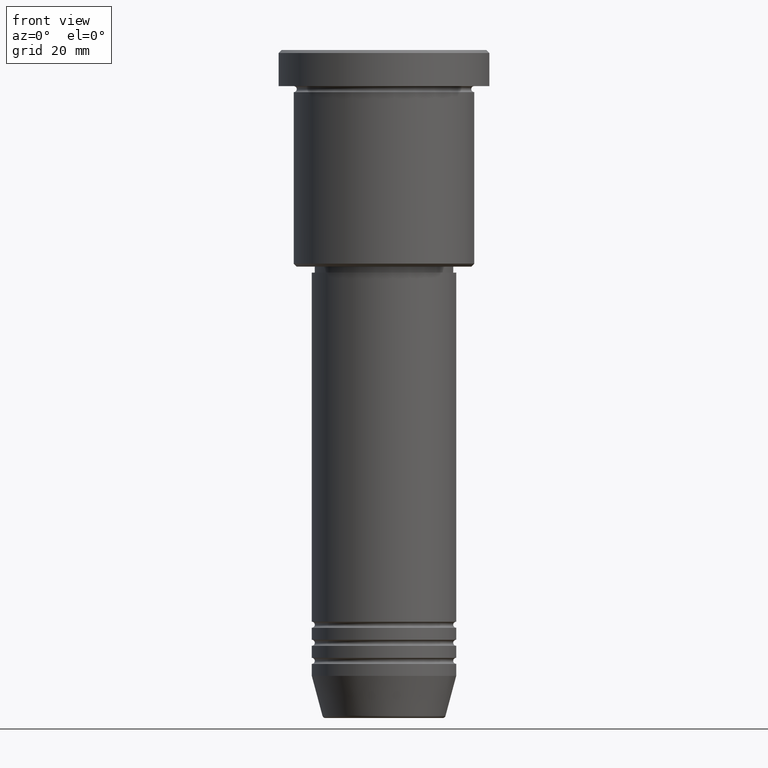
[diagram: clean part render]
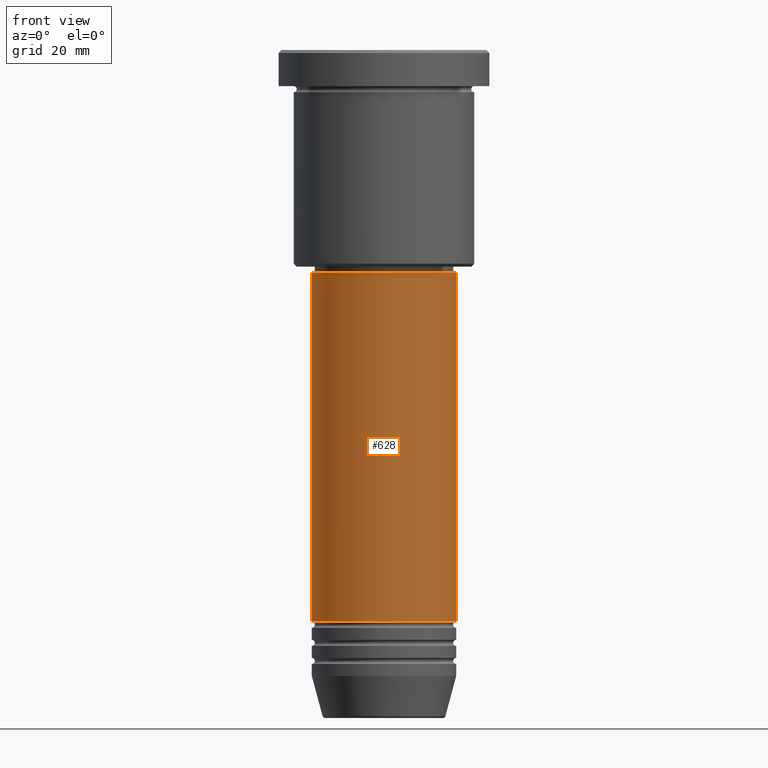
[diagram: same view with one face highlighted and labeled with its STEP entity id]
A machine part, front view. The second image highlights one B-rep face of the part: STEP entity #628.
In plain terms, the highlighted cylindrical surface (partial cylindrical patch) has radius 12 mm, axis along (-0, -0, 1).
Its self-contained STEP definition (entity closure, byte-faithful):
#6 = AXIS2_PLACEMENT_3D ( 'NONE', #902, #180, #75 ) ;
#35 = DIRECTION ( 'NONE',  ( -0.000000000000000000, -0.000000000000000000, 1.000000000000000000 ) ) ;
#69 = DIRECTION ( 'NONE',  ( -0.000000000000000000, -0.000000000000000000, 1.000000000000000000 ) ) ;
#75 = DIRECTION ( 'NONE',  ( 1.000000000000000000, 0.000000000000000000, 0.000000000000000000 ) ) ;
#78 = EDGE_CURVE ( 'NONE', #230, #255, #376, .T. ) ;
#122 = VERTEX_POINT ( 'NONE', #233 ) ;
#180 = DIRECTION ( 'NONE',  ( -0.000000000000000000, -0.000000000000000000, 1.000000000000000000 ) ) ;
#214 = CARTESIAN_POINT ( 'NONE',  ( 12.00000000000000000, 0.000000000000000000, 0.000000000000000000 ) ) ;
#230 = VERTEX_POINT ( 'NONE', #600 ) ;
#233 = CARTESIAN_POINT ( 'NONE',  ( -12.00000000000000000, 1.469576158976823947E-15, -37.00000000000001421 ) ) ;
#255 = VERTEX_POINT ( 'NONE', #795 ) ;
#291 = CIRCLE ( 'NONE', #488, 12.00000000000000000 ) ;
#356 = EDGE_CURVE ( 'NONE', #122, #255, #291, .T. ) ;
#360 = LINE ( 'NONE', #1144, #553 ) ;
#376 = LINE ( 'NONE', #214, #470 ) ;
#391 = ORIENTED_EDGE ( 'NONE', *, *, #645, .F. ) ;
#393 = DIRECTION ( 'NONE',  ( 1.000000000000000000, 0.000000000000000000, 0.000000000000000000 ) ) ;
#423 = FACE_OUTER_BOUND ( 'NONE', #440, .T. ) ;
#440 = EDGE_LOOP ( 'NONE', ( #391, #997, #870, #807 ) ) ;
#470 = VECTOR ( 'NONE', #736, 1000.000000000000000 ) ;
#484 = CARTESIAN_POINT ( 'NONE',  ( 0.000000000000000000, 0.000000000000000000, -37.00000000000001421 ) ) ;
#488 = AXIS2_PLACEMENT_3D ( 'NONE', #484, #850, #841 ) ;
#492 = AXIS2_PLACEMENT_3D ( 'NONE', #599, #35, #393 ) ;
#553 = VECTOR ( 'NONE', #69, 1000.000000000000000 ) ;
#599 = CARTESIAN_POINT ( 'NONE',  ( 0.000000000000000000, 0.000000000000000000, -94.99999999999997158 ) ) ;
#600 = CARTESIAN_POINT ( 'NONE',  ( 12.00000000000000000, 0.000000000000000000, -94.99999999999997158 ) ) ;
#628 = ADVANCED_FACE ( 'NONE', ( #423 ), #1082, .T. ) ;
#645 = EDGE_CURVE ( 'NONE', #703, #122, #360, .T. ) ;
#703 = VERTEX_POINT ( 'NONE', #910 ) ;
#736 = DIRECTION ( 'NONE',  ( -0.000000000000000000, -0.000000000000000000, 1.000000000000000000 ) ) ;
#795 = CARTESIAN_POINT ( 'NONE',  ( 12.00000000000000000, 0.000000000000000000, -37.00000000000001421 ) ) ;
#807 = ORIENTED_EDGE ( 'NONE', *, *, #356, .F. ) ;
#841 = DIRECTION ( 'NONE',  ( 1.000000000000000000, 0.000000000000000000, 0.000000000000000000 ) ) ;
#850 = DIRECTION ( 'NONE',  ( -0.000000000000000000, -0.000000000000000000, 1.000000000000000000 ) ) ;
#870 = ORIENTED_EDGE ( 'NONE', *, *, #78, .T. ) ;
#902 = CARTESIAN_POINT ( 'NONE',  ( 0.000000000000000000, 0.000000000000000000, 0.000000000000000000 ) ) ;
#910 = CARTESIAN_POINT ( 'NONE',  ( -12.00000000000000000, 1.469576158976823947E-15, -94.99999999999997158 ) ) ;
#912 = EDGE_CURVE ( 'NONE', #703, #230, #1167, .T. ) ;
#997 = ORIENTED_EDGE ( 'NONE', *, *, #912, .T. ) ;
#1082 = CYLINDRICAL_SURFACE ( 'NONE', #6, 12.00000000000000000 ) ;
#1144 = CARTESIAN_POINT ( 'NONE',  ( -12.00000000000000000, 1.469576158976823947E-15, 0.000000000000000000 ) ) ;
#1167 = CIRCLE ( 'NONE', #492, 12.00000000000000000 ) ;